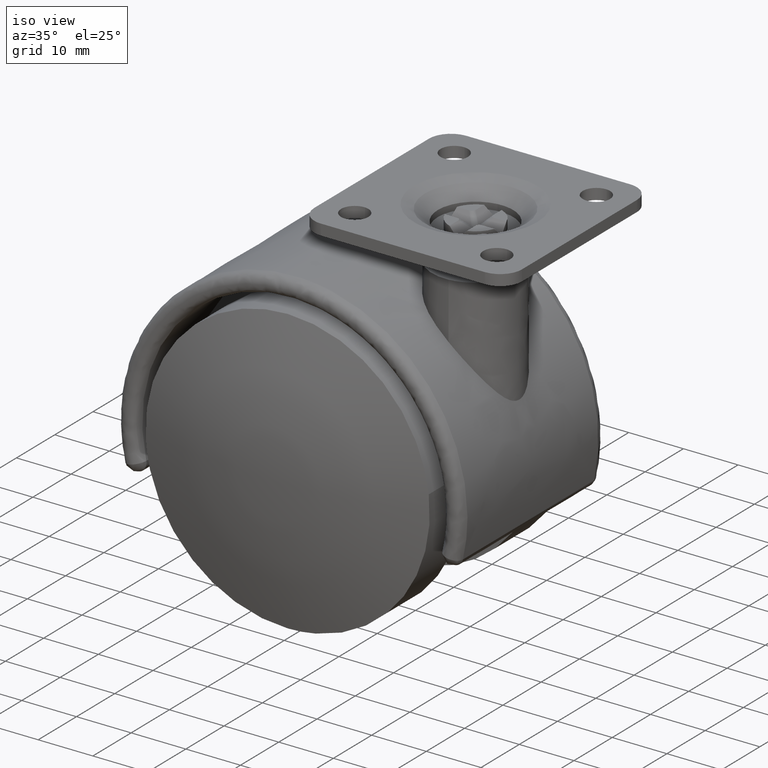
[diagram: clean part render]
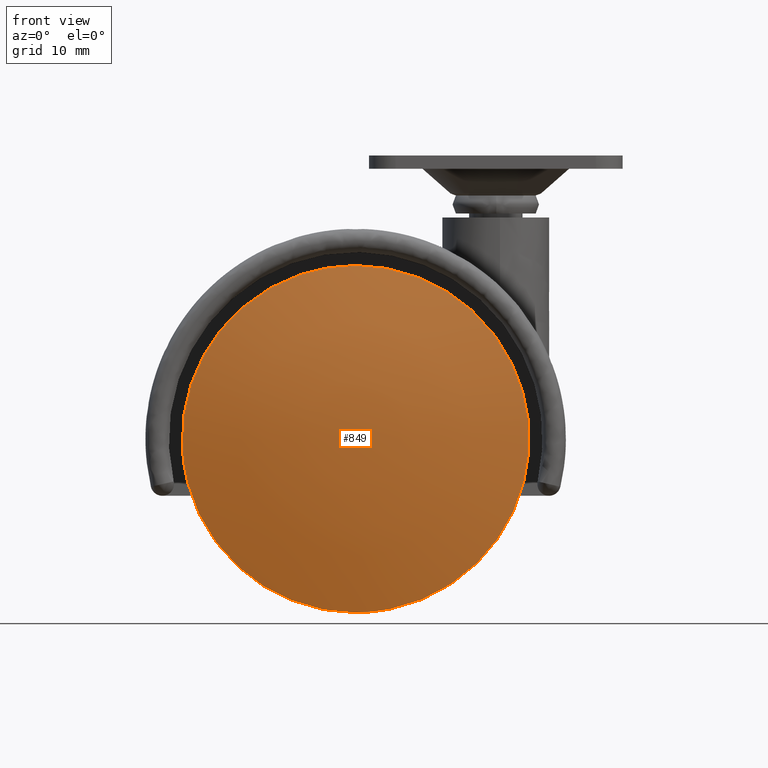
[diagram: tour spotlight — one face highlighted and labeled with its STEP entity id]
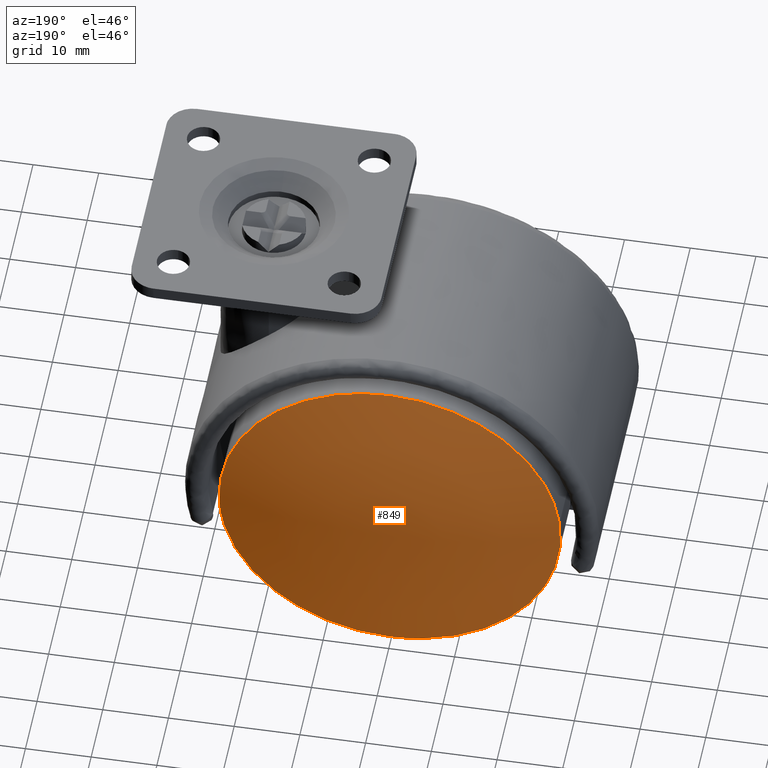
[diagram: tour spotlight — one face highlighted and labeled with its STEP entity id]
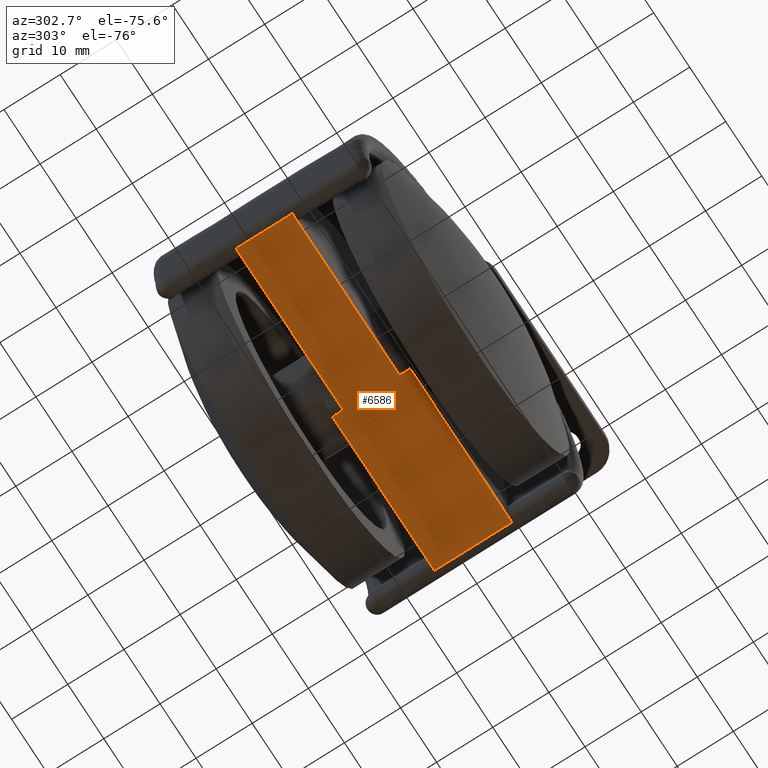
[diagram: tour spotlight — one face highlighted and labeled with its STEP entity id]
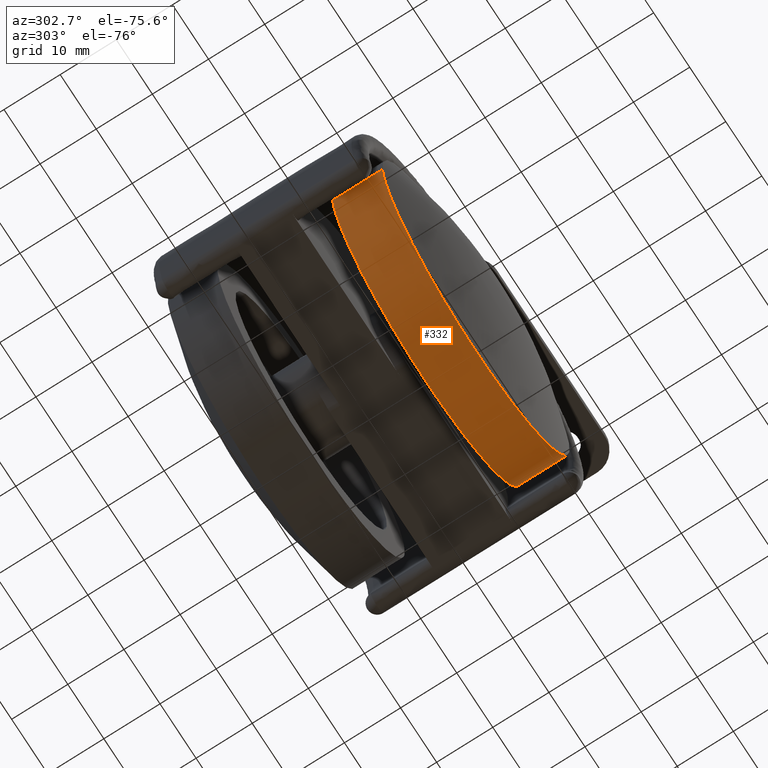
[diagram: tour spotlight — one face highlighted and labeled with its STEP entity id]
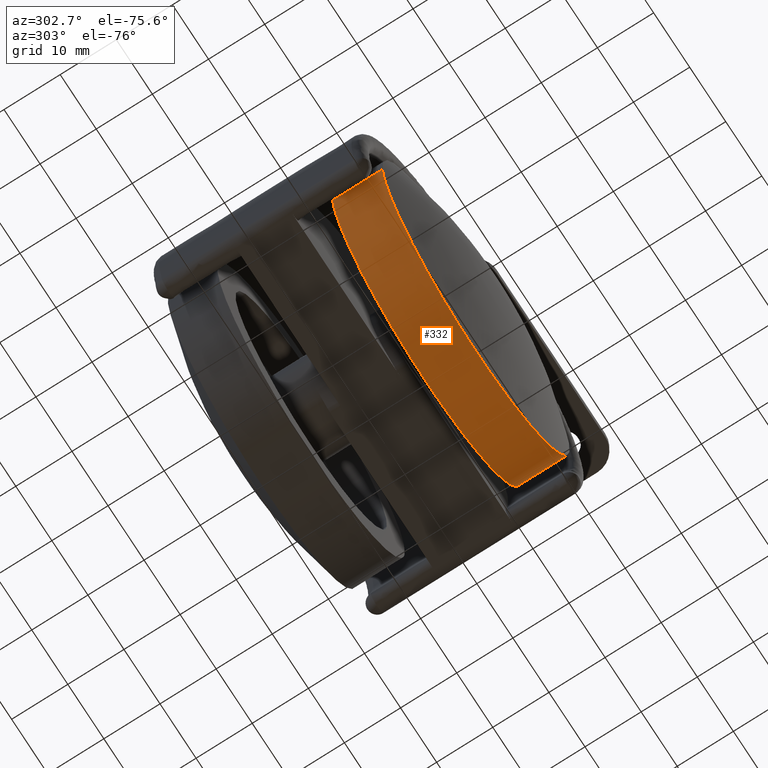
[diagram: tour spotlight — one face highlighted and labeled with its STEP entity id]
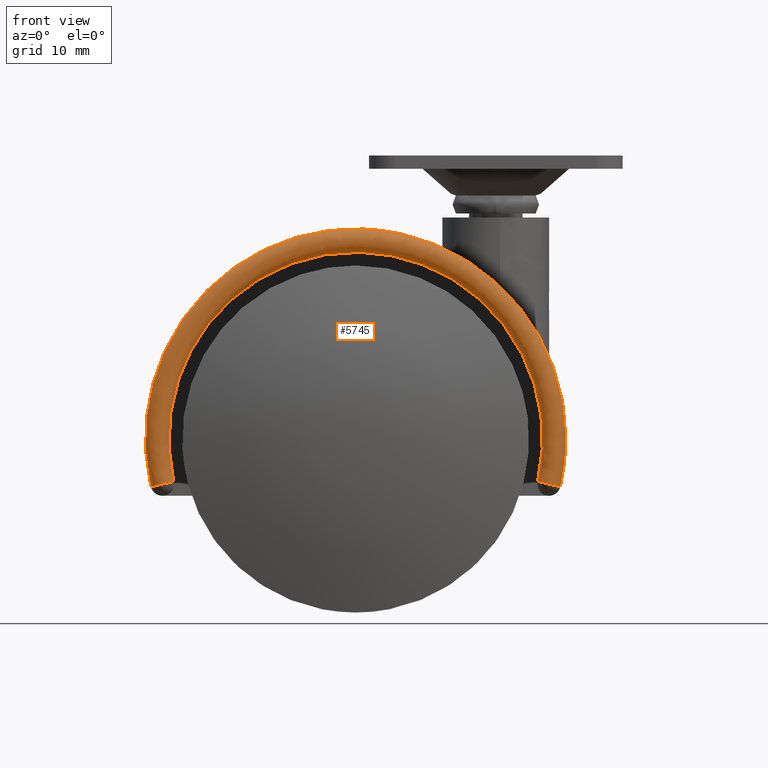
[diagram: tour spotlight — one face highlighted and labeled with its STEP entity id]
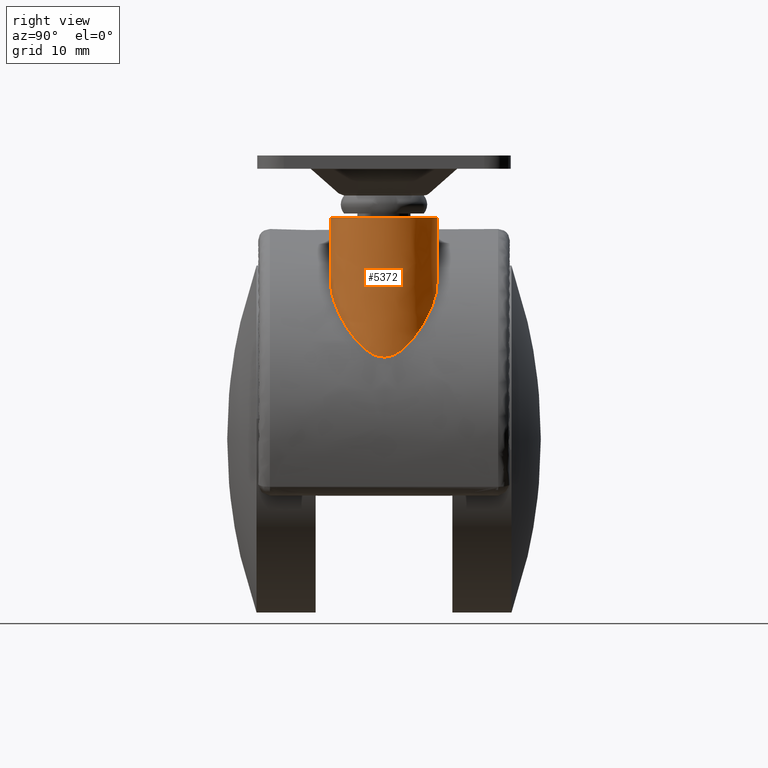
[diagram: tour spotlight — one face highlighted and labeled with its STEP entity id]
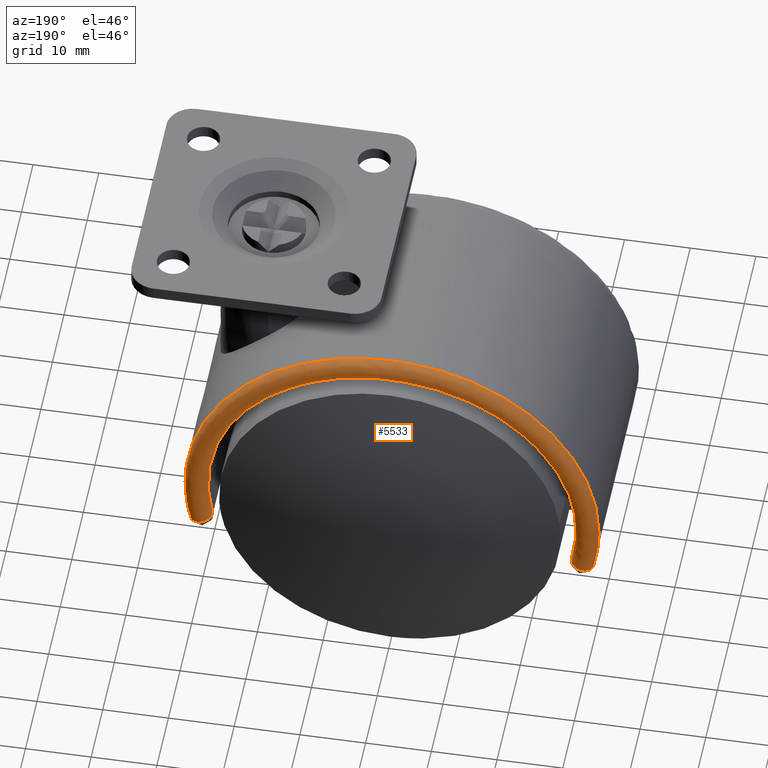
[diagram: tour spotlight — one face highlighted and labeled with its STEP entity id]
A machine part: a face-by-face anatomy tour. The part has 118 B-rep faces; the first image is the clean iso view, then the 8 largest visible faces are spotlighted one at a time (largest first), each with its STEP entity span.

Face 1 — front view, entity #849. In plain terms, the highlighted face is a freeform B-spline surface patch.
Definition (entity closure, byte-faithful):
#252=CARTESIAN_POINT('',(25.818250716227940,-19.100000010721399,3.068864603291616));
#253=VERTEX_POINT('',#252);
#254=CARTESIAN_POINT('',(0.0,-19.100000010721249,-26.0));
#255=VERTEX_POINT('',#254);
#256=CARTESIAN_POINT('',(25.818250716227940,-19.100000010721402,3.068864603291616));
#257=CARTESIAN_POINT('',(26.000000000000004,-19.100000010721246,1.539814227279839));
#258=CARTESIAN_POINT('',(26.0,-19.100000010721249,0.0));
#259=CARTESIAN_POINT('',(26.000000000000007,-19.100000010721242,-26.000000000000007));
#260=CARTESIAN_POINT('',(0.0,-19.100000010721249,-26.0));
#268=(BOUNDED_CURVE()B_SPLINE_CURVE(2,(#256,#257,#258,#259,#260),.UNSPECIFIED.,.F.,.U.)B_SPLINE_CURVE_WITH_KNOTS((3,2,3),(0.229562640421186,0.250000000000000,0.500000000000000),.UNSPECIFIED.)CURVE()GEOMETRIC_REPRESENTATION_ITEM()RATIONAL_B_SPLINE_CURVE((0.956027081329839,0.976056143875653,1.0,0.707106781186547,1.0))REPRESENTATION_ITEM(''));
#269=EDGE_CURVE('',#253,#255,#268,.T.);
#271=CARTESIAN_POINT('',(-25.951505815537288,-19.100000010721072,-1.587244752971166));
#272=VERTEX_POINT('',#271);
#273=CARTESIAN_POINT('',(0.0,-19.100000010721249,-26.0));
#274=CARTESIAN_POINT('',(-24.458374050980229,-19.100000010721249,-26.0));
#275=CARTESIAN_POINT('',(-25.951505815537292,-19.100000010721072,-1.587244752971166));
#283=(BOUNDED_CURVE()B_SPLINE_CURVE(2,(#273,#274,#275),.UNSPECIFIED.,.F.,.U.)B_SPLINE_CURVE_WITH_KNOTS((3,3),(0.500000000000000,0.739333077099850),.UNSPECIFIED.)CURVE()GEOMETRIC_REPRESENTATION_ITEM()RATIONAL_B_SPLINE_CURVE((1.0,0.719603858718787,0.976072287835629))REPRESENTATION_ITEM(''));
#284=EDGE_CURVE('',#255,#272,#283,.T.);
#351=CARTESIAN_POINT('',(0.0,-19.100000010721249,26.0));
#352=VERTEX_POINT('',#351);
#353=CARTESIAN_POINT('',(0.0,-19.100000010721249,26.0));
#354=CARTESIAN_POINT('',(23.092560641195718,-19.100000010721246,26.0));
#355=CARTESIAN_POINT('',(25.818250716227936,-19.100000010721409,3.068864603291616));
#363=(BOUNDED_CURVE()B_SPLINE_CURVE(2,(#353,#354,#355),.UNSPECIFIED.,.F.,.U.)B_SPLINE_CURVE_WITH_KNOTS((3,3),(0.0,0.229562640421186),.UNSPECIFIED.)CURVE()GEOMETRIC_REPRESENTATION_ITEM()RATIONAL_B_SPLINE_CURVE((1.0,0.731050637310895,0.956027081329839))REPRESENTATION_ITEM(''));
#364=EDGE_CURVE('',#352,#253,#363,.T.);
#398=CARTESIAN_POINT('',(-25.951505815537292,-19.100000010721072,-1.587244752971166));
#399=CARTESIAN_POINT('',(-25.999999999999996,-19.100000010721246,-0.794363184077576));
#400=CARTESIAN_POINT('',(-26.0,-19.100000010721249,0.0));
#401=CARTESIAN_POINT('',(-26.000000000000007,-19.100000010721242,26.000000000000007));
#402=CARTESIAN_POINT('',(0.0,-19.100000010721249,26.0));
#410=(BOUNDED_CURVE()B_SPLINE_CURVE(2,(#398,#399,#400,#401,#402),.UNSPECIFIED.,.F.,.U.)B_SPLINE_CURVE_WITH_KNOTS((3,2,3),(0.739333077099850,0.750000000000000,1.0),.UNSPECIFIED.)CURVE()GEOMETRIC_REPRESENTATION_ITEM()RATIONAL_B_SPLINE_CURVE((0.976072287835629,0.987502922467760,1.0,0.707106781186547,1.0))REPRESENTATION_ITEM(''));
#411=EDGE_CURVE('',#272,#352,#410,.T.);
#819=CARTESIAN_POINT('',(-27.509549926636083,-13.258914040041132,-27.510158300489543));
#820=CARTESIAN_POINT('',(-14.215357172331229,-18.207877278112218,-28.431343090072275));
#821=CARTESIAN_POINT('',(14.215437443623905,-18.207877278112218,-28.431343090072275));
#822=CARTESIAN_POINT('',(27.509695201312631,-13.258859959194144,-27.510148234047090));
#823=CARTESIAN_POINT('',(-28.430756452596867,-18.208103503328065,-14.215692599468955));
#824=CARTESIAN_POINT('',(-14.707876000288019,-23.499999999999972,-14.708201265049620));
#825=CARTESIAN_POINT('',(14.707959052736490,-23.499999999999972,-14.708201265049620));
#826=CARTESIAN_POINT('',(28.430906243680862,-18.208045739849442,-14.215687223510853));
#827=CARTESIAN_POINT('',(-28.430756452596867,-18.208103503328065,14.215694394626185));
#828=CARTESIAN_POINT('',(-14.707876000288019,-23.499999999999972,14.708203122400830));
#829=CARTESIAN_POINT('',(14.707959052736490,-23.499999999999972,14.708203122400830));
#830=CARTESIAN_POINT('',(28.430906243680862,-18.208045739849442,14.215689018667407));
#831=CARTESIAN_POINT('',(-27.509549701514796,-13.258912830575211,27.510161549345206));
#832=CARTESIAN_POINT('',(-14.215357052106134,-18.207875986291597,28.431346439925878));
#833=CARTESIAN_POINT('',(14.215437323398129,-18.207875986291597,28.431346439925878));
#834=CARTESIAN_POINT('',(27.509694976190243,-13.258858749729098,27.510151482901648));
#842=(BOUNDED_SURFACE()B_SPLINE_SURFACE(2,2,((#819,#823,#827,#831),(#820,#824,#828,#832),(#821,#825,#829,#833),(#822,#826,#830,#834)),.UNSPECIFIED.,.F.,.F.,.U.)B_SPLINE_SURFACE_WITH_KNOTS((3,1,3),(3,1,3),(14.714415427684781,42.997826829478001,71.281397942066192),(14.713789939880369,42.997826829477987,71.281867290782927),.UNSPECIFIED.)GEOMETRIC_REPRESENTATION_ITEM()RATIONAL_B_SPLINE_SURFACE(((1.069292375884866,1.034645421750261,1.034645421750261,1.069292384635299),(1.034646954134605,1.0,1.0,1.034646962885038),(1.034646954134605,1.0,1.0,1.034646962885038),(1.069292767157573,1.034645813022969,1.034645813022969,1.069292775908006)))REPRESENTATION_ITEM('')SURFACE());
#843=ORIENTED_EDGE('',*,*,#411,.F.);
#844=ORIENTED_EDGE('',*,*,#284,.F.);
#845=ORIENTED_EDGE('',*,*,#269,.F.);
#846=ORIENTED_EDGE('',*,*,#364,.F.);
#847=EDGE_LOOP('',(#843,#844,#845,#846));
#848=FACE_OUTER_BOUND('',#847,.T.);
#849=ADVANCED_FACE('',(#848),#842,.T.);

Face 2 — auxiliary view, entity #849. In plain terms, the highlighted face is a freeform B-spline surface patch.
Definition (entity closure, byte-faithful):
#252=CARTESIAN_POINT('',(25.818250716227940,-19.100000010721399,3.068864603291616));
#253=VERTEX_POINT('',#252);
#254=CARTESIAN_POINT('',(0.0,-19.100000010721249,-26.0));
#255=VERTEX_POINT('',#254);
#256=CARTESIAN_POINT('',(25.818250716227940,-19.100000010721402,3.068864603291616));
#257=CARTESIAN_POINT('',(26.000000000000004,-19.100000010721246,1.539814227279839));
#258=CARTESIAN_POINT('',(26.0,-19.100000010721249,0.0));
#259=CARTESIAN_POINT('',(26.000000000000007,-19.100000010721242,-26.000000000000007));
#260=CARTESIAN_POINT('',(0.0,-19.100000010721249,-26.0));
#268=(BOUNDED_CURVE()B_SPLINE_CURVE(2,(#256,#257,#258,#259,#260),.UNSPECIFIED.,.F.,.U.)B_SPLINE_CURVE_WITH_KNOTS((3,2,3),(0.229562640421186,0.250000000000000,0.500000000000000),.UNSPECIFIED.)CURVE()GEOMETRIC_REPRESENTATION_ITEM()RATIONAL_B_SPLINE_CURVE((0.956027081329839,0.976056143875653,1.0,0.707106781186547,1.0))REPRESENTATION_ITEM(''));
#269=EDGE_CURVE('',#253,#255,#268,.T.);
#271=CARTESIAN_POINT('',(-25.951505815537288,-19.100000010721072,-1.587244752971166));
#272=VERTEX_POINT('',#271);
#273=CARTESIAN_POINT('',(0.0,-19.100000010721249,-26.0));
#274=CARTESIAN_POINT('',(-24.458374050980229,-19.100000010721249,-26.0));
#275=CARTESIAN_POINT('',(-25.951505815537292,-19.100000010721072,-1.587244752971166));
#283=(BOUNDED_CURVE()B_SPLINE_CURVE(2,(#273,#274,#275),.UNSPECIFIED.,.F.,.U.)B_SPLINE_CURVE_WITH_KNOTS((3,3),(0.500000000000000,0.739333077099850),.UNSPECIFIED.)CURVE()GEOMETRIC_REPRESENTATION_ITEM()RATIONAL_B_SPLINE_CURVE((1.0,0.719603858718787,0.976072287835629))REPRESENTATION_ITEM(''));
#284=EDGE_CURVE('',#255,#272,#283,.T.);
#351=CARTESIAN_POINT('',(0.0,-19.100000010721249,26.0));
#352=VERTEX_POINT('',#351);
#353=CARTESIAN_POINT('',(0.0,-19.100000010721249,26.0));
#354=CARTESIAN_POINT('',(23.092560641195718,-19.100000010721246,26.0));
#355=CARTESIAN_POINT('',(25.818250716227936,-19.100000010721409,3.068864603291616));
#363=(BOUNDED_CURVE()B_SPLINE_CURVE(2,(#353,#354,#355),.UNSPECIFIED.,.F.,.U.)B_SPLINE_CURVE_WITH_KNOTS((3,3),(0.0,0.229562640421186),.UNSPECIFIED.)CURVE()GEOMETRIC_REPRESENTATION_ITEM()RATIONAL_B_SPLINE_CURVE((1.0,0.731050637310895,0.956027081329839))REPRESENTATION_ITEM(''));
#364=EDGE_CURVE('',#352,#253,#363,.T.);
#398=CARTESIAN_POINT('',(-25.951505815537292,-19.100000010721072,-1.587244752971166));
#399=CARTESIAN_POINT('',(-25.999999999999996,-19.100000010721246,-0.794363184077576));
#400=CARTESIAN_POINT('',(-26.0,-19.100000010721249,0.0));
#401=CARTESIAN_POINT('',(-26.000000000000007,-19.100000010721242,26.000000000000007));
#402=CARTESIAN_POINT('',(0.0,-19.100000010721249,26.0));
#410=(BOUNDED_CURVE()B_SPLINE_CURVE(2,(#398,#399,#400,#401,#402),.UNSPECIFIED.,.F.,.U.)B_SPLINE_CURVE_WITH_KNOTS((3,2,3),(0.739333077099850,0.750000000000000,1.0),.UNSPECIFIED.)CURVE()GEOMETRIC_REPRESENTATION_ITEM()RATIONAL_B_SPLINE_CURVE((0.976072287835629,0.987502922467760,1.0,0.707106781186547,1.0))REPRESENTATION_ITEM(''));
#411=EDGE_CURVE('',#272,#352,#410,.T.);
#819=CARTESIAN_POINT('',(-27.509549926636083,-13.258914040041132,-27.510158300489543));
#820=CARTESIAN_POINT('',(-14.215357172331229,-18.207877278112218,-28.431343090072275));
#821=CARTESIAN_POINT('',(14.215437443623905,-18.207877278112218,-28.431343090072275));
#822=CARTESIAN_POINT('',(27.509695201312631,-13.258859959194144,-27.510148234047090));
#823=CARTESIAN_POINT('',(-28.430756452596867,-18.208103503328065,-14.215692599468955));
#824=CARTESIAN_POINT('',(-14.707876000288019,-23.499999999999972,-14.708201265049620));
#825=CARTESIAN_POINT('',(14.707959052736490,-23.499999999999972,-14.708201265049620));
#826=CARTESIAN_POINT('',(28.430906243680862,-18.208045739849442,-14.215687223510853));
#827=CARTESIAN_POINT('',(-28.430756452596867,-18.208103503328065,14.215694394626185));
#828=CARTESIAN_POINT('',(-14.707876000288019,-23.499999999999972,14.708203122400830));
#829=CARTESIAN_POINT('',(14.707959052736490,-23.499999999999972,14.708203122400830));
#830=CARTESIAN_POINT('',(28.430906243680862,-18.208045739849442,14.215689018667407));
#831=CARTESIAN_POINT('',(-27.509549701514796,-13.258912830575211,27.510161549345206));
#832=CARTESIAN_POINT('',(-14.215357052106134,-18.207875986291597,28.431346439925878));
#833=CARTESIAN_POINT('',(14.215437323398129,-18.207875986291597,28.431346439925878));
#834=CARTESIAN_POINT('',(27.509694976190243,-13.258858749729098,27.510151482901648));
#842=(BOUNDED_SURFACE()B_SPLINE_SURFACE(2,2,((#819,#823,#827,#831),(#820,#824,#828,#832),(#821,#825,#829,#833),(#822,#826,#830,#834)),.UNSPECIFIED.,.F.,.F.,.U.)B_SPLINE_SURFACE_WITH_KNOTS((3,1,3),(3,1,3),(14.714415427684781,42.997826829478001,71.281397942066192),(14.713789939880369,42.997826829477987,71.281867290782927),.UNSPECIFIED.)GEOMETRIC_REPRESENTATION_ITEM()RATIONAL_B_SPLINE_SURFACE(((1.069292375884866,1.034645421750261,1.034645421750261,1.069292384635299),(1.034646954134605,1.0,1.0,1.034646962885038),(1.034646954134605,1.0,1.0,1.034646962885038),(1.069292767157573,1.034645813022969,1.034645813022969,1.069292775908006)))REPRESENTATION_ITEM('')SURFACE());
#843=ORIENTED_EDGE('',*,*,#411,.F.);
#844=ORIENTED_EDGE('',*,*,#284,.F.);
#845=ORIENTED_EDGE('',*,*,#269,.F.);
#846=ORIENTED_EDGE('',*,*,#364,.F.);
#847=EDGE_LOOP('',(#843,#844,#845,#846));
#848=FACE_OUTER_BOUND('',#847,.T.);
#849=ADVANCED_FACE('',(#848),#842,.T.);

Face 3 — auxiliary view, entity #6586. In plain terms, the highlighted face is a freeform B-spline surface patch.
Definition (entity closure, byte-faithful):
#5828=CARTESIAN_POINT('',(28.974126388900849,-6.900000000000000,-8.500000000000000));
#5829=VERTEX_POINT('',#5828);
#5845=CARTESIAN_POINT('',(28.974126388900849,6.900000000000000,-8.500000000000000));
#5846=VERTEX_POINT('',#5845);
#5847=CARTESIAN_POINT('',(28.974126388900849,6.900000000000000,-8.500000000000000));
#5848=CARTESIAN_POINT('',(28.974126388900849,-6.900000000000000,-8.500000000000000));
#5849=QUASI_UNIFORM_CURVE('',1,(#5847,#5848),.UNSPECIFIED.,.F.,.U.);
#5850=EDGE_CURVE('',#5846,#5829,#5849,.T.);
#5917=CARTESIAN_POINT('',(-28.974126388900849,5.0,-8.500000000000000));
#5918=VERTEX_POINT('',#5917);
#5934=CARTESIAN_POINT('',(-28.974126388900849,-5.0,-8.500000000000000));
#5935=VERTEX_POINT('',#5934);
#5936=CARTESIAN_POINT('',(-28.974126388900849,-5.0,-8.500000000000000));
#5937=CARTESIAN_POINT('',(-28.974126388900849,5.0,-8.500000000000000));
#5938=QUASI_UNIFORM_CURVE('',1,(#5936,#5937),.UNSPECIFIED.,.F.,.U.);
#5939=EDGE_CURVE('',#5935,#5918,#5938,.T.);
#6018=CARTESIAN_POINT('',(0.750000000000000,6.900000000000000,-8.500000000000000));
#6019=VERTEX_POINT('',#6018);
#6020=CARTESIAN_POINT('',(28.974126388900849,6.900000000000000,-8.500000000000000));
#6021=CARTESIAN_POINT('',(0.750000000000000,6.900000000000000,-8.500000000000000));
#6022=QUASI_UNIFORM_CURVE('',1,(#6020,#6021),.UNSPECIFIED.,.F.,.U.);
#6023=EDGE_CURVE('',#5846,#6019,#6022,.T.);
#6097=CARTESIAN_POINT('',(0.750000000000000,5.0,-8.500000000000000));
#6098=VERTEX_POINT('',#6097);
#6099=CARTESIAN_POINT('',(0.750000000000000,5.0,-8.500000000000000));
#6100=CARTESIAN_POINT('',(0.750000000000000,6.900000000000000,-8.500000000000000));
#6101=QUASI_UNIFORM_CURVE('',1,(#6099,#6100),.UNSPECIFIED.,.F.,.U.);
#6102=EDGE_CURVE('',#6098,#6019,#6101,.T.);
#6194=CARTESIAN_POINT('',(0.750000000000000,5.0,-8.500000000000000));
#6195=CARTESIAN_POINT('',(-28.974126388900849,5.0,-8.500000000000000));
#6196=QUASI_UNIFORM_CURVE('',1,(#6194,#6195),.UNSPECIFIED.,.F.,.U.);
#6197=EDGE_CURVE('',#6098,#5918,#6196,.T.);
#6264=CARTESIAN_POINT('',(0.750000000000000,-6.900000000000000,-8.500000000000000));
#6265=VERTEX_POINT('',#6264);
#6279=CARTESIAN_POINT('',(28.974126388900849,-6.900000000000000,-8.500000000000000));
#6280=CARTESIAN_POINT('',(0.750000000000000,-6.900000000000000,-8.500000000000000));
#6281=QUASI_UNIFORM_CURVE('',1,(#6279,#6280),.UNSPECIFIED.,.F.,.U.);
#6282=EDGE_CURVE('',#5829,#6265,#6281,.T.);
#6366=CARTESIAN_POINT('',(0.750000000000000,-5.0,-8.500000000000000));
#6367=VERTEX_POINT('',#6366);
#6381=CARTESIAN_POINT('',(0.750000000000000,-5.0,-8.500000000000000));
#6382=CARTESIAN_POINT('',(0.750000000000000,-6.900000000000000,-8.500000000000000));
#6383=QUASI_UNIFORM_CURVE('',1,(#6381,#6382),.UNSPECIFIED.,.F.,.U.);
#6384=EDGE_CURVE('',#6367,#6265,#6383,.T.);
#6475=CARTESIAN_POINT('',(-28.974126388900849,-5.0,-8.500000000000000));
#6476=CARTESIAN_POINT('',(0.750000000000000,-5.0,-8.500000000000000));
#6477=QUASI_UNIFORM_CURVE('',1,(#6475,#6476),.UNSPECIFIED.,.F.,.U.);
#6478=EDGE_CURVE('',#5935,#6367,#6477,.T.);
#6571=CARTESIAN_POINT('',(-31.868642046813822,-7.589310102797450,-8.500000000000000));
#6572=CARTESIAN_POINT('',(31.868643083009339,-7.589310102797450,-8.500000000000000));
#6573=CARTESIAN_POINT('',(-31.868642046813822,7.589310349560680,-8.500000000000000));
#6574=CARTESIAN_POINT('',(31.868643083009339,7.589310349560680,-8.500000000000000));
#6575=B_SPLINE_SURFACE_WITH_KNOTS('',1,1,((#6571,#6573),(#6572,#6574)),.UNSPECIFIED.,.F.,.F.,.U.,(2,2),(2,2),(0.0,63.737285129823171),(0.0,15.178620452358130),.UNSPECIFIED.);
#6576=ORIENTED_EDGE('',*,*,#6478,.F.);
#6577=ORIENTED_EDGE('',*,*,#5939,.T.);
#6578=ORIENTED_EDGE('',*,*,#6197,.F.);
#6579=ORIENTED_EDGE('',*,*,#6102,.T.);
#6580=ORIENTED_EDGE('',*,*,#6023,.F.);
#6581=ORIENTED_EDGE('',*,*,#5850,.T.);
#6582=ORIENTED_EDGE('',*,*,#6282,.T.);
#6583=ORIENTED_EDGE('',*,*,#6384,.F.);
#6584=EDGE_LOOP('',(#6576,#6577,#6578,#6579,#6580,#6581,#6582,#6583));
#6585=FACE_OUTER_BOUND('',#6584,.T.);
#6586=ADVANCED_FACE('',(#6585),#6575,.F.);

Face 4 — auxiliary view, entity #332. In plain terms, the highlighted face is a freeform B-spline surface patch.
Definition (entity closure, byte-faithful):
#230=CARTESIAN_POINT('',(25.818247685455319,-19.321250010989285,3.068890101075720));
#231=CARTESIAN_POINT('',(25.906078001663747,-19.321250010989285,2.329982944587419));
#232=CARTESIAN_POINT('',(25.951504758968529,-19.321250010989289,1.587262027906282));
#233=CARTESIAN_POINT('',(27.538766786874810,-19.321250010989285,-24.364242731062255));
#234=CARTESIAN_POINT('',(1.587262027906282,-19.321250010989289,-25.951504758968529));
#235=CARTESIAN_POINT('',(-24.364242731062255,-19.321250010989285,-27.538766786874810));
#236=CARTESIAN_POINT('',(-25.951504758968529,-19.321250010989289,-1.587262027906282));
#237=CARTESIAN_POINT('',(25.818247685455319,-10.023218749725268,3.068890101075720));
#238=CARTESIAN_POINT('',(25.906078001663747,-10.023218749725267,2.329982944587419));
#239=CARTESIAN_POINT('',(25.951504758968529,-10.023218749725270,1.587262027906282));
#240=CARTESIAN_POINT('',(27.538766786874810,-10.023218749725267,-24.364242731062255));
#241=CARTESIAN_POINT('',(1.587262027906282,-10.023218749725270,-25.951504758968529));
#242=CARTESIAN_POINT('',(-24.364242731062255,-10.023218749725267,-27.538766786874810));
#243=CARTESIAN_POINT('',(-25.951504758968529,-10.023218749725270,-1.587262027906282));
#251=(BOUNDED_SURFACE()B_SPLINE_SURFACE(2,1,((#230,#237),(#231,#238),(#232,#239),(#233,#240),(#234,#241),(#235,#242),(#236,#243)),.UNSPECIFIED.,.F.,.F.,.U.)B_SPLINE_SURFACE_WITH_KNOTS((3,2,2,3),(2,2),(0.0,1.723128419472078,44.801338906273962,87.879549393075834),(0.0,9.298031261264020),.UNSPECIFIED.)GEOMETRIC_REPRESENTATION_ITEM()RATIONAL_B_SPLINE_SURFACE(((0.977505800795127,0.977505800795127),(0.988284271247462,0.988284271247462),(1.0,1.0),(0.707106781186548,0.707106781186548),(1.0,1.0),(0.707106781186548,0.707106781186548),(1.0,1.0)))REPRESENTATION_ITEM('')SURFACE());
#252=CARTESIAN_POINT('',(25.818250716227940,-19.100000010721399,3.068864603291616));
#253=VERTEX_POINT('',#252);
#254=CARTESIAN_POINT('',(0.0,-19.100000010721249,-26.0));
#255=VERTEX_POINT('',#254);
#256=CARTESIAN_POINT('',(25.818250716227940,-19.100000010721402,3.068864603291616));
#257=CARTESIAN_POINT('',(26.000000000000004,-19.100000010721246,1.539814227279839));
#258=CARTESIAN_POINT('',(26.0,-19.100000010721249,0.0));
#259=CARTESIAN_POINT('',(26.000000000000007,-19.100000010721242,-26.000000000000007));
#260=CARTESIAN_POINT('',(0.0,-19.100000010721249,-26.0));
#268=(BOUNDED_CURVE()B_SPLINE_CURVE(2,(#256,#257,#258,#259,#260),.UNSPECIFIED.,.F.,.U.)B_SPLINE_CURVE_WITH_KNOTS((3,2,3),(0.229562640421186,0.250000000000000,0.500000000000000),.UNSPECIFIED.)CURVE()GEOMETRIC_REPRESENTATION_ITEM()RATIONAL_B_SPLINE_CURVE((0.956027081329839,0.976056143875653,1.0,0.707106781186547,1.0))REPRESENTATION_ITEM(''));
#269=EDGE_CURVE('',#253,#255,#268,.T.);
#270=ORIENTED_EDGE('',*,*,#269,.T.);
#271=CARTESIAN_POINT('',(-25.951505815537288,-19.100000010721072,-1.587244752971166));
#272=VERTEX_POINT('',#271);
#273=CARTESIAN_POINT('',(0.0,-19.100000010721249,-26.0));
#274=CARTESIAN_POINT('',(-24.458374050980229,-19.100000010721249,-26.0));
#275=CARTESIAN_POINT('',(-25.951505815537292,-19.100000010721072,-1.587244752971166));
#283=(BOUNDED_CURVE()B_SPLINE_CURVE(2,(#273,#274,#275),.UNSPECIFIED.,.F.,.U.)B_SPLINE_CURVE_WITH_KNOTS((3,3),(0.500000000000000,0.739333077099850),.UNSPECIFIED.)CURVE()GEOMETRIC_REPRESENTATION_ITEM()RATIONAL_B_SPLINE_CURVE((1.0,0.719603858718787,0.976072287835629))REPRESENTATION_ITEM(''));
#284=EDGE_CURVE('',#255,#272,#283,.T.);
#285=ORIENTED_EDGE('',*,*,#284,.T.);
#286=CARTESIAN_POINT('',(-25.951505802817628,-10.250000000000000,-1.587244960940237));
#287=VERTEX_POINT('',#286);
#288=CARTESIAN_POINT('',(-25.951505815537288,-19.100000010721072,-1.587244752971166));
#289=CARTESIAN_POINT('',(-25.951505802817628,-10.250000000000000,-1.587244960940237));
#290=QUASI_UNIFORM_CURVE('',1,(#288,#289),.UNSPECIFIED.,.F.,.U.);
#291=EDGE_CURVE('',#272,#287,#290,.T.);
#292=ORIENTED_EDGE('',*,*,#291,.T.);
#293=CARTESIAN_POINT('',(0.0,-10.250000000000000,-26.0));
#294=VERTEX_POINT('',#293);
#295=CARTESIAN_POINT('',(0.0,-10.250000000000000,-26.0));
#296=CARTESIAN_POINT('',(-24.458373854610496,-10.249999999999998,-26.000000000000007));
#297=CARTESIAN_POINT('',(-25.951505802817632,-10.249999999999998,-1.587244960940237));
#305=(BOUNDED_CURVE()B_SPLINE_CURVE(2,(#295,#296,#297),.UNSPECIFIED.,.F.,.U.)B_SPLINE_CURVE_WITH_KNOTS((3,3),(0.500000000000000,0.739333075717101),.UNSPECIFIED.)CURVE()GEOMETRIC_REPRESENTATION_ITEM()RATIONAL_B_SPLINE_CURVE((1.0,0.719603860338778,0.976072284872133))REPRESENTATION_ITEM(''));
#306=EDGE_CURVE('',#294,#287,#305,.T.);
#307=ORIENTED_EDGE('',*,*,#306,.F.);
#308=CARTESIAN_POINT('',(25.818250679703731,-10.250000000000000,3.068864910571040));
#309=VERTEX_POINT('',#308);
#310=CARTESIAN_POINT('',(25.818250679703727,-10.250000000000000,3.068864910571040));
#311=CARTESIAN_POINT('',(26.000000000000004,-10.249999999999998,1.539814382543767));
#312=CARTESIAN_POINT('',(26.0,-10.250000000000000,0.0));
#313=CARTESIAN_POINT('',(26.000000000000007,-10.250000000000000,-26.000000000000007));
#314=CARTESIAN_POINT('',(0.0,-10.250000000000000,-26.0));
#322=(BOUNDED_CURVE()B_SPLINE_CURVE(2,(#310,#311,#312,#313,#314),.UNSPECIFIED.,.F.,.U.)B_SPLINE_CURVE_WITH_KNOTS((3,2,3),(0.229562638409770,0.250000000000000,0.500000000000000),.UNSPECIFIED.)CURVE()GEOMETRIC_REPRESENTATION_ITEM()RATIONAL_B_SPLINE_CURVE((0.956027077387376,0.976056141519133,1.0,0.707106781186547,1.0))REPRESENTATION_ITEM(''));
#323=EDGE_CURVE('',#309,#294,#322,.T.);
#324=ORIENTED_EDGE('',*,*,#323,.F.);
#325=CARTESIAN_POINT('',(25.818250716227940,-19.100000010721399,3.068864603291616));
#326=CARTESIAN_POINT('',(25.818250679703731,-10.250000000000000,3.068864910571040));
#327=QUASI_UNIFORM_CURVE('',1,(#325,#326),.UNSPECIFIED.,.F.,.U.);
#328=EDGE_CURVE('',#253,#309,#327,.T.);
#329=ORIENTED_EDGE('',*,*,#328,.F.);
#330=EDGE_LOOP('',(#270,#285,#292,#307,#324,#329));
#331=FACE_OUTER_BOUND('',#330,.T.);
#332=ADVANCED_FACE('',(#331),#251,.T.);

Face 5 — auxiliary view, entity #332. In plain terms, the highlighted face is a freeform B-spline surface patch.
Definition (entity closure, byte-faithful):
#230=CARTESIAN_POINT('',(25.818247685455319,-19.321250010989285,3.068890101075720));
#231=CARTESIAN_POINT('',(25.906078001663747,-19.321250010989285,2.329982944587419));
#232=CARTESIAN_POINT('',(25.951504758968529,-19.321250010989289,1.587262027906282));
#233=CARTESIAN_POINT('',(27.538766786874810,-19.321250010989285,-24.364242731062255));
#234=CARTESIAN_POINT('',(1.587262027906282,-19.321250010989289,-25.951504758968529));
#235=CARTESIAN_POINT('',(-24.364242731062255,-19.321250010989285,-27.538766786874810));
#236=CARTESIAN_POINT('',(-25.951504758968529,-19.321250010989289,-1.587262027906282));
#237=CARTESIAN_POINT('',(25.818247685455319,-10.023218749725268,3.068890101075720));
#238=CARTESIAN_POINT('',(25.906078001663747,-10.023218749725267,2.329982944587419));
#239=CARTESIAN_POINT('',(25.951504758968529,-10.023218749725270,1.587262027906282));
#240=CARTESIAN_POINT('',(27.538766786874810,-10.023218749725267,-24.364242731062255));
#241=CARTESIAN_POINT('',(1.587262027906282,-10.023218749725270,-25.951504758968529));
#242=CARTESIAN_POINT('',(-24.364242731062255,-10.023218749725267,-27.538766786874810));
#243=CARTESIAN_POINT('',(-25.951504758968529,-10.023218749725270,-1.587262027906282));
#251=(BOUNDED_SURFACE()B_SPLINE_SURFACE(2,1,((#230,#237),(#231,#238),(#232,#239),(#233,#240),(#234,#241),(#235,#242),(#236,#243)),.UNSPECIFIED.,.F.,.F.,.U.)B_SPLINE_SURFACE_WITH_KNOTS((3,2,2,3),(2,2),(0.0,1.723128419472078,44.801338906273962,87.879549393075834),(0.0,9.298031261264020),.UNSPECIFIED.)GEOMETRIC_REPRESENTATION_ITEM()RATIONAL_B_SPLINE_SURFACE(((0.977505800795127,0.977505800795127),(0.988284271247462,0.988284271247462),(1.0,1.0),(0.707106781186548,0.707106781186548),(1.0,1.0),(0.707106781186548,0.707106781186548),(1.0,1.0)))REPRESENTATION_ITEM('')SURFACE());
#252=CARTESIAN_POINT('',(25.818250716227940,-19.100000010721399,3.068864603291616));
#253=VERTEX_POINT('',#252);
#254=CARTESIAN_POINT('',(0.0,-19.100000010721249,-26.0));
#255=VERTEX_POINT('',#254);
#256=CARTESIAN_POINT('',(25.818250716227940,-19.100000010721402,3.068864603291616));
#257=CARTESIAN_POINT('',(26.000000000000004,-19.100000010721246,1.539814227279839));
#258=CARTESIAN_POINT('',(26.0,-19.100000010721249,0.0));
#259=CARTESIAN_POINT('',(26.000000000000007,-19.100000010721242,-26.000000000000007));
#260=CARTESIAN_POINT('',(0.0,-19.100000010721249,-26.0));
#268=(BOUNDED_CURVE()B_SPLINE_CURVE(2,(#256,#257,#258,#259,#260),.UNSPECIFIED.,.F.,.U.)B_SPLINE_CURVE_WITH_KNOTS((3,2,3),(0.229562640421186,0.250000000000000,0.500000000000000),.UNSPECIFIED.)CURVE()GEOMETRIC_REPRESENTATION_ITEM()RATIONAL_B_SPLINE_CURVE((0.956027081329839,0.976056143875653,1.0,0.707106781186547,1.0))REPRESENTATION_ITEM(''));
#269=EDGE_CURVE('',#253,#255,#268,.T.);
#270=ORIENTED_EDGE('',*,*,#269,.T.);
#271=CARTESIAN_POINT('',(-25.951505815537288,-19.100000010721072,-1.587244752971166));
#272=VERTEX_POINT('',#271);
#273=CARTESIAN_POINT('',(0.0,-19.100000010721249,-26.0));
#274=CARTESIAN_POINT('',(-24.458374050980229,-19.100000010721249,-26.0));
#275=CARTESIAN_POINT('',(-25.951505815537292,-19.100000010721072,-1.587244752971166));
#283=(BOUNDED_CURVE()B_SPLINE_CURVE(2,(#273,#274,#275),.UNSPECIFIED.,.F.,.U.)B_SPLINE_CURVE_WITH_KNOTS((3,3),(0.500000000000000,0.739333077099850),.UNSPECIFIED.)CURVE()GEOMETRIC_REPRESENTATION_ITEM()RATIONAL_B_SPLINE_CURVE((1.0,0.719603858718787,0.976072287835629))REPRESENTATION_ITEM(''));
#284=EDGE_CURVE('',#255,#272,#283,.T.);
#285=ORIENTED_EDGE('',*,*,#284,.T.);
#286=CARTESIAN_POINT('',(-25.951505802817628,-10.250000000000000,-1.587244960940237));
#287=VERTEX_POINT('',#286);
#288=CARTESIAN_POINT('',(-25.951505815537288,-19.100000010721072,-1.587244752971166));
#289=CARTESIAN_POINT('',(-25.951505802817628,-10.250000000000000,-1.587244960940237));
#290=QUASI_UNIFORM_CURVE('',1,(#288,#289),.UNSPECIFIED.,.F.,.U.);
#291=EDGE_CURVE('',#272,#287,#290,.T.);
#292=ORIENTED_EDGE('',*,*,#291,.T.);
#293=CARTESIAN_POINT('',(0.0,-10.250000000000000,-26.0));
#294=VERTEX_POINT('',#293);
#295=CARTESIAN_POINT('',(0.0,-10.250000000000000,-26.0));
#296=CARTESIAN_POINT('',(-24.458373854610496,-10.249999999999998,-26.000000000000007));
#297=CARTESIAN_POINT('',(-25.951505802817632,-10.249999999999998,-1.587244960940237));
#305=(BOUNDED_CURVE()B_SPLINE_CURVE(2,(#295,#296,#297),.UNSPECIFIED.,.F.,.U.)B_SPLINE_CURVE_WITH_KNOTS((3,3),(0.500000000000000,0.739333075717101),.UNSPECIFIED.)CURVE()GEOMETRIC_REPRESENTATION_ITEM()RATIONAL_B_SPLINE_CURVE((1.0,0.719603860338778,0.976072284872133))REPRESENTATION_ITEM(''));
#306=EDGE_CURVE('',#294,#287,#305,.T.);
#307=ORIENTED_EDGE('',*,*,#306,.F.);
#308=CARTESIAN_POINT('',(25.818250679703731,-10.250000000000000,3.068864910571040));
#309=VERTEX_POINT('',#308);
#310=CARTESIAN_POINT('',(25.818250679703727,-10.250000000000000,3.068864910571040));
#311=CARTESIAN_POINT('',(26.000000000000004,-10.249999999999998,1.539814382543767));
#312=CARTESIAN_POINT('',(26.0,-10.250000000000000,0.0));
#313=CARTESIAN_POINT('',(26.000000000000007,-10.250000000000000,-26.000000000000007));
#314=CARTESIAN_POINT('',(0.0,-10.250000000000000,-26.0));
#322=(BOUNDED_CURVE()B_SPLINE_CURVE(2,(#310,#311,#312,#313,#314),.UNSPECIFIED.,.F.,.U.)B_SPLINE_CURVE_WITH_KNOTS((3,2,3),(0.229562638409770,0.250000000000000,0.500000000000000),.UNSPECIFIED.)CURVE()GEOMETRIC_REPRESENTATION_ITEM()RATIONAL_B_SPLINE_CURVE((0.956027077387376,0.976056141519133,1.0,0.707106781186547,1.0))REPRESENTATION_ITEM(''));
#323=EDGE_CURVE('',#309,#294,#322,.T.);
#324=ORIENTED_EDGE('',*,*,#323,.F.);
#325=CARTESIAN_POINT('',(25.818250716227940,-19.100000010721399,3.068864603291616));
#326=CARTESIAN_POINT('',(25.818250679703731,-10.250000000000000,3.068864910571040));
#327=QUASI_UNIFORM_CURVE('',1,(#325,#326),.UNSPECIFIED.,.F.,.U.);
#328=EDGE_CURVE('',#253,#309,#327,.T.);
#329=ORIENTED_EDGE('',*,*,#328,.F.);
#330=EDGE_LOOP('',(#270,#285,#292,#307,#324,#329));
#331=FACE_OUTER_BOUND('',#330,.T.);
#332=ADVANCED_FACE('',(#331),#251,.T.);

Face 6 — front view, entity #5745. In plain terms, the highlighted face is a freeform B-spline surface patch.
Definition (entity closure, byte-faithful):
#5617=CARTESIAN_POINT('',(-27.269766013083149,-17.100000000000001,-6.352941176470590));
#5618=VERTEX_POINT('',#5617);
#5619=CARTESIAN_POINT('',(-30.678486764718549,-17.100000000000001,-7.147058823529410));
#5620=VERTEX_POINT('',#5619);
#5621=CARTESIAN_POINT('',(-27.269766013083149,-17.100000000000001,-6.352941176470587));
#5622=CARTESIAN_POINT('',(-27.269766013083157,-18.850000000000001,-6.352941176470586));
#5623=CARTESIAN_POINT('',(-28.974126388900849,-18.850000000000001,-6.750000000000000));
#5624=CARTESIAN_POINT('',(-30.678486764718549,-18.850000000000001,-7.147058823529414));
#5625=CARTESIAN_POINT('',(-30.678486764718539,-17.100000000000001,-7.147058823529413));
#5633=(BOUNDED_CURVE()B_SPLINE_CURVE(2,(#5621,#5622,#5623,#5624,#5625),.UNSPECIFIED.,.F.,.U.)B_SPLINE_CURVE_WITH_KNOTS((3,2,3),(0.0,0.500000000000000,1.0),.UNSPECIFIED.)CURVE()GEOMETRIC_REPRESENTATION_ITEM()RATIONAL_B_SPLINE_CURVE((1.0,0.707106781186547,1.0,0.707106781186547,1.0))REPRESENTATION_ITEM(''));
#5634=EDGE_CURVE('',#5618,#5620,#5633,.T.);
#5656=CARTESIAN_POINT('',(29.430086460112978,-16.852832165797366,-11.181016247803095));
#5657=CARTESIAN_POINT('',(45.638703135949825,-16.852832165797363,31.482457232296241));
#5658=CARTESIAN_POINT('',(0.0,-16.852832165797366,31.482457232296237));
#5659=CARTESIAN_POINT('',(-45.638703135949825,-16.852832165797363,31.482457232296241));
#5660=CARTESIAN_POINT('',(-29.430086460112978,-16.852832165797366,-11.181016247803095));
#5661=CARTESIAN_POINT('',(29.698141851580552,-18.862721756905373,-11.282855285597710));
#5662=CARTESIAN_POINT('',(46.054390002917053,-18.862721756905366,31.769206046615952));
#5663=CARTESIAN_POINT('',(0.0,-18.862721756905373,31.769206046615967));
#5664=CARTESIAN_POINT('',(-46.054390002917053,-18.862721756905366,31.769206046615952));
#5665=CARTESIAN_POINT('',(-29.698141851580552,-18.862721756905373,-11.282855285597710));
#5666=CARTESIAN_POINT('',(27.800291036932059,-18.849965456498239,-10.561827815180640));
#5667=CARTESIAN_POINT('',(43.111298074068870,-18.849965456498236,29.739004498060257));
#5668=CARTESIAN_POINT('',(0.0,-18.849965456498239,29.739004498060261));
#5669=CARTESIAN_POINT('',(-43.111298074068870,-18.849965456498236,29.739004498060257));
#5670=CARTESIAN_POINT('',(-27.800291036932059,-18.849965456498239,-10.561827815180640));
#5671=CARTESIAN_POINT('',(25.925038621418715,-18.837361049994406,-9.849385880801549));
#5672=CARTESIAN_POINT('',(40.203250610036449,-18.837361049994399,27.732977296911073));
#5673=CARTESIAN_POINT('',(0.0,-18.837361049994406,27.732977296911077));
#5674=CARTESIAN_POINT('',(-40.203250610036449,-18.837361049994399,27.732977296911073));
#5675=CARTESIAN_POINT('',(-25.925038621418715,-18.837361049994406,-9.849385880801549));
#5676=CARTESIAN_POINT('',(26.191217065874046,-16.851605128350823,-9.950511832854170));
#5677=CARTESIAN_POINT('',(40.616026801643976,-16.851605128350819,28.017718271256555));
#5678=CARTESIAN_POINT('',(0.0,-16.851605128350823,28.017718271256541));
#5679=CARTESIAN_POINT('',(-40.616026801643976,-16.851605128350819,28.017718271256555));
#5680=CARTESIAN_POINT('',(-26.191217065874046,-16.851605128350823,-9.950511832854170));
#5688=(BOUNDED_SURFACE()B_SPLINE_SURFACE(2,2,((#5656,#5661,#5666,#5671,#5676),(#5657,#5662,#5667,#5672,#5677),(#5658,#5663,#5668,#5673,#5678),(#5659,#5664,#5669,#5674,#5679),(#5660,#5665,#5670,#5675,#5680)),.UNSPECIFIED.,.F.,.F.,.U.)B_SPLINE_SURFACE_WITH_KNOTS((3,2,3),(3,2,3),(0.0,66.116516624095979,132.233033248191990),(0.0,3.207778064986509,6.390598302477793),.UNSPECIFIED.)GEOMETRIC_REPRESENTATION_ITEM()RATIONAL_B_SPLINE_SURFACE(((0.993268617861399,0.650693886555314,1.0,0.653411631220239,0.987979757204071),(0.564002251718915,0.369479927783382,0.567824495385010,0.371023129776329,0.560999107085006),(0.993268617861399,0.650693886555314,1.0,0.653411631220239,0.987979757204071),(0.564002251718915,0.369479927783382,0.567824495385010,0.371023129776329,0.560999107085006),(0.993268617861399,0.650693886555314,1.0,0.653411631220239,0.987979757204071)))REPRESENTATION_ITEM('')SURFACE());
#5689=ORIENTED_EDGE('',*,*,#5634,.F.);
#5690=CARTESIAN_POINT('',(27.269766013083149,-17.100000000000001,-6.352941176470590));
#5691=VERTEX_POINT('',#5690);
#5692=CARTESIAN_POINT('',(27.269766013083139,-17.100000000000001,-6.352941176470591));
#5693=CARTESIAN_POINT('',(31.615053142353418,-17.099999999999998,12.299043783461450));
#5694=CARTESIAN_POINT('',(15.807526571176719,-17.100000000000001,23.111081837541530));
#5695=CARTESIAN_POINT('',(1.387779E-014,-17.099999999999998,33.923119891621596));
#5696=CARTESIAN_POINT('',(-15.807526571176711,-17.100000000000001,23.111081837541541));
#5697=CARTESIAN_POINT('',(-31.615053142353418,-17.099999999999998,12.299043783461473));
#5698=CARTESIAN_POINT('',(-27.269766013083139,-17.100000000000001,-6.352941176470584));
#5706=(BOUNDED_CURVE()B_SPLINE_CURVE(2,(#5692,#5693,#5694,#5695,#5696,#5697,#5698),.UNSPECIFIED.,.F.,.U.)B_SPLINE_CURVE_WITH_KNOTS((3,2,2,3),(0.0,0.333333333333333,0.666666666666667,1.0),.UNSPECIFIED.)CURVE()GEOMETRIC_REPRESENTATION_ITEM()RATIONAL_B_SPLINE_CURVE((1.0,0.825395779912198,1.0,0.825395779912198,1.0,0.825395779912198,1.0))REPRESENTATION_ITEM(''));
#5707=EDGE_CURVE('',#5691,#5618,#5706,.T.);
#5708=ORIENTED_EDGE('',*,*,#5707,.F.);
#5709=CARTESIAN_POINT('',(30.678486764718549,-17.100000000000001,-7.147058823529410));
#5710=VERTEX_POINT('',#5709);
#5711=CARTESIAN_POINT('',(27.269766013083149,-17.100000000000001,-6.352941176470587));
#5712=CARTESIAN_POINT('',(27.269766013083157,-18.850000000000001,-6.352941176470586));
#5713=CARTESIAN_POINT('',(28.974126388900849,-18.850000000000001,-6.750000000000000));
#5714=CARTESIAN_POINT('',(30.678486764718549,-18.850000000000001,-7.147058823529414));
#5715=CARTESIAN_POINT('',(30.678486764718539,-17.100000000000001,-7.147058823529413));
#5723=(BOUNDED_CURVE()B_SPLINE_CURVE(2,(#5711,#5712,#5713,#5714,#5715),.UNSPECIFIED.,.F.,.U.)B_SPLINE_CURVE_WITH_KNOTS((3,2,3),(0.0,0.500000000000000,1.0),.UNSPECIFIED.)CURVE()GEOMETRIC_REPRESENTATION_ITEM()RATIONAL_B_SPLINE_CURVE((1.0,0.707106781186547,1.0,0.707106781186547,1.0))REPRESENTATION_ITEM(''));
#5724=EDGE_CURVE('',#5691,#5710,#5723,.T.);
#5725=ORIENTED_EDGE('',*,*,#5724,.T.);
#5726=CARTESIAN_POINT('',(-30.678486764718539,-17.100000000000001,-7.147058823529414));
#5727=CARTESIAN_POINT('',(-35.566934785147609,-17.100000000000001,13.836424256394128));
#5728=CARTESIAN_POINT('',(-17.783467392573812,-17.100000000000001,25.999967067234220));
#5729=CARTESIAN_POINT('',(-1.387779E-014,-17.100000000000001,38.163509878074308));
#5730=CARTESIAN_POINT('',(17.783467392573790,-17.100000000000001,25.999967067234230));
#5731=CARTESIAN_POINT('',(35.566934785147609,-17.100000000000001,13.836424256394151));
#5732=CARTESIAN_POINT('',(30.678486764718539,-17.100000000000001,-7.147058823529408));
#5740=(BOUNDED_CURVE()B_SPLINE_CURVE(2,(#5726,#5727,#5728,#5729,#5730,#5731,#5732),.UNSPECIFIED.,.F.,.U.)B_SPLINE_CURVE_WITH_KNOTS((3,2,2,3),(0.0,0.333333333333333,0.666666666666667,1.0),.UNSPECIFIED.)CURVE()GEOMETRIC_REPRESENTATION_ITEM()RATIONAL_B_SPLINE_CURVE((1.0,0.825395779912198,1.0,0.825395779912198,1.0,0.825395779912198,1.0))REPRESENTATION_ITEM(''));
#5741=EDGE_CURVE('',#5620,#5710,#5740,.T.);
#5742=ORIENTED_EDGE('',*,*,#5741,.F.);
#5743=EDGE_LOOP('',(#5689,#5708,#5725,#5742));
#5744=FACE_OUTER_BOUND('',#5743,.T.);
#5745=ADVANCED_FACE('',(#5744),#5688,.T.);

Face 7 — right view, entity #5372. In plain terms, the highlighted face is a freeform B-spline surface patch.
Definition (entity closure, byte-faithful):
#5072=CARTESIAN_POINT('',(21.627672765927830,-7.975338669856753,33.200000000000003));
#5073=VERTEX_POINT('',#5072);
#5091=CARTESIAN_POINT('',(20.372327234072170,7.975338669856753,33.200000000000003));
#5092=VERTEX_POINT('',#5091);
#5106=CARTESIAN_POINT('',(20.372325604908241,7.975359410969109,24.025370340321231));
#5107=VERTEX_POINT('',#5106);
#5108=CARTESIAN_POINT('',(20.372327234072170,7.975338669856753,33.200000000000003));
#5109=CARTESIAN_POINT('',(20.372325604908241,7.975359410969109,24.025370340321231));
#5110=QUASI_UNIFORM_CURVE('',1,(#5108,#5109),.UNSPECIFIED.,.F.,.U.);
#5111=EDGE_CURVE('',#5092,#5107,#5110,.T.);
#5157=CARTESIAN_POINT('',(21.627675372564209,-7.975371755451252,22.901831461404370));
#5158=VERTEX_POINT('',#5157);
#5208=CARTESIAN_POINT('',(21.627672765927830,-7.975338669856753,33.200000000000003));
#5209=CARTESIAN_POINT('',(21.627675372564209,-7.975371755451252,22.901831461404370));
#5210=QUASI_UNIFORM_CURVE('',1,(#5208,#5209),.UNSPECIFIED.,.F.,.U.);
#5211=EDGE_CURVE('',#5073,#5158,#5210,.T.);
#5216=CARTESIAN_POINT('',(20.372327234177249,7.975338669865022,33.722539505860659));
#5217=CARTESIAN_POINT('',(28.347665904042270,8.603011435687773,33.722539505860659));
#5218=CARTESIAN_POINT('',(28.975338669865021,0.627672765822751,33.722539505860659));
#5219=CARTESIAN_POINT('',(29.603011435687772,-7.347665904042271,33.722539505860659));
#5220=CARTESIAN_POINT('',(21.627672765822751,-7.975338669865022,33.722539505860659));
#5221=CARTESIAN_POINT('',(20.372327234177249,7.975338669865022,11.762816772066969));
#5222=CARTESIAN_POINT('',(28.347665904042270,8.603011435687773,11.762816772066975));
#5223=CARTESIAN_POINT('',(28.975338669865021,0.627672765822751,11.762816772066969));
#5224=CARTESIAN_POINT('',(29.603011435687772,-7.347665904042271,11.762816772066975));
#5225=CARTESIAN_POINT('',(21.627672765822751,-7.975338669865022,11.762816772066969));
#5233=(BOUNDED_SURFACE()B_SPLINE_SURFACE(2,1,((#5216,#5221),(#5217,#5222),(#5218,#5223),(#5219,#5224),(#5220,#5225)),.UNSPECIFIED.,.F.,.F.,.U.)B_SPLINE_SURFACE_WITH_KNOTS((3,2,3),(2,2),(0.0,13.254833995939039,26.509667991878079),(0.0,21.959722733793690),.UNSPECIFIED.)GEOMETRIC_REPRESENTATION_ITEM()RATIONAL_B_SPLINE_SURFACE(((1.0,1.0),(0.707106781186548,0.707106781186548),(1.0,1.0),(0.707106781186548,0.707106781186548),(1.0,1.0)))REPRESENTATION_ITEM('')SURFACE());
#5234=CARTESIAN_POINT('',(29.0,0.0,33.200000000000003));
#5235=VERTEX_POINT('',#5234);
#5236=CARTESIAN_POINT('',(29.0,0.0,33.200000000000003));
#5237=CARTESIAN_POINT('',(29.000000000000011,-7.395123933070185,33.200000000000003));
#5238=CARTESIAN_POINT('',(21.627672765927830,-7.975338669856753,33.200000000000003));
#5246=(BOUNDED_CURVE()B_SPLINE_CURVE(2,(#5236,#5237,#5238),.UNSPECIFIED.,.F.,.U.)B_SPLINE_CURVE_WITH_KNOTS((3,3),(0.500000000000000,0.736331300628250),.UNSPECIFIED.)CURVE()GEOMETRIC_REPRESENTATION_ITEM()RATIONAL_B_SPLINE_CURVE((1.0,0.723120658610489,0.969723356162388))REPRESENTATION_ITEM(''));
#5247=EDGE_CURVE('',#5235,#5073,#5246,.T.);
#5248=ORIENTED_EDGE('',*,*,#5247,.T.);
#5249=ORIENTED_EDGE('',*,*,#5211,.T.);
#5250=CARTESIAN_POINT('',(28.999980551675279,0.017643581452778,12.298419765574140));
#5251=VERTEX_POINT('',#5250);
#5252=CARTESIAN_POINT('',(28.999980551675279,0.017643581452778,12.298419765574140));
#5253=CARTESIAN_POINT('',(29.000337283259839,-0.144116088996775,12.297578519864130));
#5254=CARTESIAN_POINT('',(28.995792184862321,-0.305804801082611,12.308314983095880));
#5255=CARTESIAN_POINT('',(28.981603375430922,-0.548231996525365,12.341669596163880));
#5256=CARTESIAN_POINT('',(28.975612126465059,-0.629321393933326,12.355736558485800));
#5257=CARTESIAN_POINT('',(28.961387206842041,-0.789143190418131,12.389042494371211));
#5258=CARTESIAN_POINT('',(28.953152688698651,-0.868060164412052,12.408283438748340));
#5259=CARTESIAN_POINT('',(28.925285957672109,-1.102050885048360,12.473172867151449));
#5260=CARTESIAN_POINT('',(28.902499392432169,-1.254371211018403,12.525970797233880));
#5261=CARTESIAN_POINT('',(28.862631777828572,-1.478089788733299,12.617431681956210));
#5262=CARTESIAN_POINT('',(28.848376178581610,-1.551944261084095,12.650003662814409));
#5263=CARTESIAN_POINT('',(28.818111915321168,-1.697840860406856,12.718798098802390));
#5264=CARTESIAN_POINT('',(28.802195979299370,-1.769451600551676,12.754809773849370));
#5265=CARTESIAN_POINT('',(28.752275030682370,-1.980695510252120,12.867143469136350));
#5266=CARTESIAN_POINT('',(28.716105360767511,-2.116757793430708,12.947742331095080));
#5267=CARTESIAN_POINT('',(28.638676782585900,-2.381083101186429,13.118114492751470));
#5268=CARTESIAN_POINT('',(28.597414370842259,-2.509339315786497,13.207896236952850));
#5269=CARTESIAN_POINT('',(28.510247188779779,-2.759287834585117,13.395015267745700));
#5270=CARTESIAN_POINT('',(28.464340401549340,-2.880976074330871,13.492357628522340));
#5271=CARTESIAN_POINT('',(28.368180326091750,-3.118703544171959,13.693382741474149));
#5272=CARTESIAN_POINT('',(28.317881323868161,-3.234794960628312,13.797150114459830));
#5273=CARTESIAN_POINT('',(28.162431140852998,-3.572235036789649,14.113205650066281));
#5274=CARTESIAN_POINT('',(28.052232882938259,-3.784220425786915,14.331275254943231));
#5275=CARTESIAN_POINT('',(27.819815874820659,-4.188604141648250,14.777383363379140));
#5276=CARTESIAN_POINT('',(27.697582121586780,-4.380941485333780,15.005465135425929));
#5277=CARTESIAN_POINT('',(27.441465733583119,-4.749500156285864,15.468871713369170));
#5278=CARTESIAN_POINT('',(27.307577096965709,-4.925694674543673,15.704215864507750));
#5279=CARTESIAN_POINT('',(27.097992691840041,-5.179417304465366,16.061375654257681));
#5280=CARTESIAN_POINT('',(27.026670023683891,-5.262220700490831,16.181125917168181));
#5281=CARTESIAN_POINT('',(26.881073296136169,-5.424452286746583,16.421864214988641));
#5282=CARTESIAN_POINT('',(26.806795787853670,-5.503871932192527,16.542851078055740));
#5283=CARTESIAN_POINT('',(26.430066134436370,-5.890737401013748,17.147189564901350));
#5284=CARTESIAN_POINT('',(26.110029128547868,-6.169767044927220,17.631348558475459));
#5285=CARTESIAN_POINT('',(25.431423041957849,-6.673893738067037,18.596795047049810));
#5286=CARTESIAN_POINT('',(25.072853251960598,-6.898874240817703,19.078137645102711));
#5287=CARTESIAN_POINT('',(24.314084551200882,-7.293790989642897,20.036182044575000));
#5288=CARTESIAN_POINT('',(23.913893469620270,-7.463747585025756,20.512919639745281));
#5289=CARTESIAN_POINT('',(23.066649415426451,-7.741266706357384,21.461217384972191));
#5290=CARTESIAN_POINT('',(22.627767783213631,-7.846087740411734,21.923586578288621));
#5291=CARTESIAN_POINT('',(21.993799380458491,-7.940070951140472,22.551861260050700));
#5292=CARTESIAN_POINT('',(21.811988039409030,-7.960850174938339,22.727771412016310));
#5293=CARTESIAN_POINT('',(21.627675372564209,-7.975371755451252,22.901831461404370));
#5294=B_SPLINE_CURVE_WITH_KNOTS('',3,(#5252,#5253,#5254,#5255,#5256,#5257,#5258,#5259,#5260,#5261,#5262,#5263,#5264,#5265,#5266,#5267,#5268,#5269,#5270,#5271,#5272,#5273,#5274,#5275,#5276,#5277,#5278,#5279,#5280,#5281,#5282,#5283,#5284,#5285,#5286,#5287,#5288,#5289,#5290,#5291,#5292,#5293),.UNSPECIFIED.,.F.,.U.,(4,2,2,2,2,2,2,2,2,2,2,2,2,2,2,2,2,2,2,2,4),(0.499999999999998,0.507812499999998,0.511718749999998,0.515624999999998,0.523437499999998,0.527343749999998,0.531249999999998,0.539062499999998,0.546874999999998,0.554687499999998,0.562499999999998,0.578124999999998,0.593749999999998,0.609374999999998,0.617187499999998,0.624999999999998,0.656249999999998,0.687499999999998,0.718749999999998,0.749999999999998,0.762329839955776),.UNSPECIFIED.);
#5295=EDGE_CURVE('',#5251,#5158,#5294,.T.);
#5296=ORIENTED_EDGE('',*,*,#5295,.F.);
#5297=CARTESIAN_POINT('',(20.372325604908241,7.975359410969109,24.025370340321231));
#5298=CARTESIAN_POINT('',(20.496658086278519,7.985125990952647,23.919942512524280));
#5299=CARTESIAN_POINT('',(20.620524604263611,7.991927678659851,23.813250686271310));
#5300=CARTESIAN_POINT('',(20.865782521923990,7.999783441013423,23.598631671092729));
#5301=CARTESIAN_POINT('',(20.987380133962908,8.000879983912043,23.490558917996712));
#5302=CARTESIAN_POINT('',(21.228671161073141,7.997621881998836,23.272730898727190));
#5303=CARTESIAN_POINT('',(21.348084398332642,7.993281639743125,23.163234865926970));
#5304=CARTESIAN_POINT('',(21.702730232908781,7.972575629871150,22.833000956279822));
#5305=CARTESIAN_POINT('',(21.934372543902459,7.948542775403801,22.610516718851269));
#5306=CARTESIAN_POINT('',(22.615608869076489,7.848582041183164,21.936105020495290));
#5307=CARTESIAN_POINT('',(23.051550647951650,7.744991656008558,21.477211565191901));
#5308=CARTESIAN_POINT('',(23.679952823834672,7.540963344198678,20.775190196627360));
#5309=CARTESIAN_POINT('',(23.885157891795789,7.464792634609642,20.538904616413468));
#5310=CARTESIAN_POINT('',(24.186716614365519,7.338698980228119,20.181108069223701));
#5311=CARTESIAN_POINT('',(24.286194206325511,7.294691967090649,20.061281336845529));
#5312=CARTESIAN_POINT('',(24.483083783136589,7.202759135943086,19.820515767524050));
#5313=CARTESIAN_POINT('',(24.580356593421222,7.154892152372618,19.699742535027418));
#5314=CARTESIAN_POINT('',(25.059130608821508,6.907189279807611,19.096328349813209));
#5315=CARTESIAN_POINT('',(25.419783302752009,6.681664644557153,18.612745228807292));
#5316=CARTESIAN_POINT('',(26.100390513056379,6.177796955397094,17.645658896543299));
#5317=CARTESIAN_POINT('',(26.420339299355049,5.899545667953627,17.162102333625821));
#5318=CARTESIAN_POINT('',(26.795980063901489,5.515258875150806,16.560362799041819));
#5319=CARTESIAN_POINT('',(26.869888055349090,5.436554101759353,16.440159232998280));
#5320=CARTESIAN_POINT('',(27.015269206444479,5.275248752075109,16.200152712072249));
#5321=CARTESIAN_POINT('',(27.086804312918758,5.192573329159472,16.080243849788090));
#5322=CARTESIAN_POINT('',(27.297309134636730,4.938840223596568,15.722075376341021));
#5323=CARTESIAN_POINT('',(27.431832862131099,4.762568293675532,15.485968716802640));
#5324=CARTESIAN_POINT('',(27.689257354278539,4.393674788924989,15.020842361017710));
#5325=CARTESIAN_POINT('',(27.812164183843020,4.201080934406797,14.791803184220299));
#5326=CARTESIAN_POINT('',(27.987512429279668,3.897218601069572,14.455626691389011));
#5327=CARTESIAN_POINT('',(28.044456233349770,3.793421738504461,14.344807908944450));
#5328=CARTESIAN_POINT('',(28.155222533559520,3.580112716314161,14.126163024595909));
#5329=CARTESIAN_POINT('',(28.208849737140358,3.470962440712326,14.018718866353860));
#5330=CARTESIAN_POINT('',(28.363747813168160,3.136187922471436,13.704104550127880));
#5331=CARTESIAN_POINT('',(28.459311391041471,2.902947435238720,13.504066796968280));
#5332=CARTESIAN_POINT('',(28.589606360793951,2.532780379229780,13.224786292894370));
#5333=CARTESIAN_POINT('',(28.630851631989991,2.405979394713763,13.135186721914280));
#5334=CARTESIAN_POINT('',(28.708509515861209,2.144182108713948,12.964577709442500));
#5335=CARTESIAN_POINT('',(28.744925979271471,2.009194268682516,12.883558860723070));
#5336=CARTESIAN_POINT('',(28.795404325164512,1.799125868307081,12.770137413842050));
#5337=CARTESIAN_POINT('',(28.811552534720821,1.727760546858904,12.733652243003050));
#5338=CARTESIAN_POINT('',(28.842275291881929,1.582475445329062,12.663909907172361));
#5339=CARTESIAN_POINT('',(28.856736982390121,1.509094447523134,12.630909687358811));
#5340=CARTESIAN_POINT('',(28.897306534823109,1.286578990880325,12.537952453353769));
#5341=CARTESIAN_POINT('',(28.920608132250880,1.135079210520843,12.484021010071050));
#5342=CARTESIAN_POINT('',(28.949331542328110,0.902351032296653,12.417197514567921));
#5343=CARTESIAN_POINT('',(28.957865684961028,0.823860193073491,12.397272880300751));
#5344=CARTESIAN_POINT('',(28.969007049599949,0.704641464987511,12.371205362177189));
#5345=CARTESIAN_POINT('',(28.972444018735100,0.664654679931370,12.363153085265770));
#5346=CARTESIAN_POINT('',(28.978745445701609,0.584166635079485,12.348375550020510));
#5347=CARTESIAN_POINT('',(28.981612113812321,0.543610974077369,12.341645083646140));
#5348=CARTESIAN_POINT('',(28.994365247798960,0.341234016210662,12.311679965936710));
#5349=CARTESIAN_POINT('',(28.999623813304900,0.179403337734171,12.299261011284550));
#5350=CARTESIAN_POINT('',(28.999980551675279,0.017643581452778,12.298419765574140));
#5351=B_SPLINE_CURVE_WITH_KNOTS('',3,(#5297,#5298,#5299,#5300,#5301,#5302,#5303,#5304,#5305,#5306,#5307,#5308,#5309,#5310,#5311,#5312,#5313,#5314,#5315,#5316,#5317,#5318,#5319,#5320,#5321,#5322,#5323,#5324,#5325,#5326,#5327,#5328,#5329,#5330,#5331,#5332,#5333,#5334,#5335,#5336,#5337,#5338,#5339,#5340,#5341,#5342,#5343,#5344,#5345,#5346,#5347,#5348,#5349,#5350),.UNSPECIFIED.,.F.,.U.,(4,2,2,2,2,2,2,2,2,2,2,2,2,2,2,2,2,2,2,2,2,2,2,2,2,2,4),(0.210841906106403,0.218749999999998,0.226562499999998,0.234374999999998,0.249999999999998,0.281249999999997,0.296874999999997,0.304687499999997,0.312499999999997,0.343749999999997,0.374999999999997,0.382812499999997,0.390624999999997,0.406249999999997,0.421874999999997,0.429687499999997,0.437499999999997,0.453124999999997,0.460937499999997,0.468749999999997,0.472656249999998,0.476562499999998,0.484374999999998,0.488281249999998,0.490234374999998,0.492187499999998,0.499999999999998),.UNSPECIFIED.);
#5352=EDGE_CURVE('',#5107,#5251,#5351,.T.);
#5353=ORIENTED_EDGE('',*,*,#5352,.F.);
#5354=ORIENTED_EDGE('',*,*,#5111,.F.);
#5355=CARTESIAN_POINT('',(20.372327234072170,7.975338669856754,33.200000000000003));
#5356=CARTESIAN_POINT('',(20.685679143833081,8.0,33.200000000000010));
#5357=CARTESIAN_POINT('',(21.0,8.0,33.200000000000003));
#5358=CARTESIAN_POINT('',(29.0,8.0,33.200000000000003));
#5359=CARTESIAN_POINT('',(29.0,0.0,33.200000000000003));
#5367=(BOUNDED_CURVE()B_SPLINE_CURVE(2,(#5355,#5356,#5357,#5358,#5359),.UNSPECIFIED.,.F.,.U.)B_SPLINE_CURVE_WITH_KNOTS((3,2,3),(0.236331300628250,0.250000000000000,0.500000000000000),.UNSPECIFIED.)CURVE()GEOMETRIC_REPRESENTATION_ITEM()RATIONAL_B_SPLINE_CURVE((0.969723356162389,0.983986122576059,1.0,0.707106781186548,1.0))REPRESENTATION_ITEM(''));
#5368=EDGE_CURVE('',#5092,#5235,#5367,.T.);
#5369=ORIENTED_EDGE('',*,*,#5368,.T.);
#5370=EDGE_LOOP('',(#5248,#5249,#5296,#5353,#5354,#5369));
#5371=FACE_OUTER_BOUND('',#5370,.T.);
#5372=ADVANCED_FACE('',(#5371),#5233,.T.);

Face 8 — auxiliary view, entity #5533. In plain terms, the highlighted face is a freeform B-spline surface patch.
Definition (entity closure, byte-faithful):
#5405=CARTESIAN_POINT('',(27.269766013083149,17.100000000000001,-6.352941176470590));
#5406=VERTEX_POINT('',#5405);
#5407=CARTESIAN_POINT('',(30.678486764718549,17.100000000000001,-7.147058823529410));
#5408=VERTEX_POINT('',#5407);
#5409=CARTESIAN_POINT('',(27.269766013083149,17.100000000000001,-6.352941176470587));
#5410=CARTESIAN_POINT('',(27.269766013083157,18.850000000000001,-6.352941176470586));
#5411=CARTESIAN_POINT('',(28.974126388900849,18.850000000000001,-6.750000000000000));
#5412=CARTESIAN_POINT('',(30.678486764718549,18.850000000000001,-7.147058823529414));
#5413=CARTESIAN_POINT('',(30.678486764718539,17.100000000000001,-7.147058823529413));
#5421=(BOUNDED_CURVE()B_SPLINE_CURVE(2,(#5409,#5410,#5411,#5412,#5413),.UNSPECIFIED.,.F.,.U.)B_SPLINE_CURVE_WITH_KNOTS((3,2,3),(0.0,0.500000000000000,1.0),.UNSPECIFIED.)CURVE()GEOMETRIC_REPRESENTATION_ITEM()RATIONAL_B_SPLINE_CURVE((1.0,0.707106781186547,1.0,0.707106781186547,1.0))REPRESENTATION_ITEM(''));
#5422=EDGE_CURVE('',#5406,#5408,#5421,.T.);
#5444=CARTESIAN_POINT('',(-29.430086460112978,16.852832165797366,-11.181016247803095));
#5445=CARTESIAN_POINT('',(-45.638703135949825,16.852832165797363,31.482457232296241));
#5446=CARTESIAN_POINT('',(0.0,16.852832165797366,31.482457232296237));
#5447=CARTESIAN_POINT('',(45.638703135949825,16.852832165797363,31.482457232296241));
#5448=CARTESIAN_POINT('',(29.430086460112978,16.852832165797366,-11.181016247803095));
#5449=CARTESIAN_POINT('',(-29.698141851580552,18.862721756905373,-11.282855285597710));
#5450=CARTESIAN_POINT('',(-46.054390002917053,18.862721756905366,31.769206046615952));
#5451=CARTESIAN_POINT('',(0.0,18.862721756905373,31.769206046615967));
#5452=CARTESIAN_POINT('',(46.054390002917053,18.862721756905366,31.769206046615952));
#5453=CARTESIAN_POINT('',(29.698141851580552,18.862721756905373,-11.282855285597710));
#5454=CARTESIAN_POINT('',(-27.800291036932059,18.849965456498239,-10.561827815180640));
#5455=CARTESIAN_POINT('',(-43.111298074068870,18.849965456498236,29.739004498060257));
#5456=CARTESIAN_POINT('',(0.0,18.849965456498239,29.739004498060261));
#5457=CARTESIAN_POINT('',(43.111298074068870,18.849965456498236,29.739004498060257));
#5458=CARTESIAN_POINT('',(27.800291036932059,18.849965456498239,-10.561827815180640));
#5459=CARTESIAN_POINT('',(-25.925038621418715,18.837361049994406,-9.849385880801549));
#5460=CARTESIAN_POINT('',(-40.203250610036449,18.837361049994399,27.732977296911073));
#5461=CARTESIAN_POINT('',(0.0,18.837361049994406,27.732977296911077));
#5462=CARTESIAN_POINT('',(40.203250610036449,18.837361049994399,27.732977296911073));
#5463=CARTESIAN_POINT('',(25.925038621418715,18.837361049994406,-9.849385880801549));
#5464=CARTESIAN_POINT('',(-26.191217065874046,16.851605128350823,-9.950511832854170));
#5465=CARTESIAN_POINT('',(-40.616026801643976,16.851605128350819,28.017718271256555));
#5466=CARTESIAN_POINT('',(0.0,16.851605128350823,28.017718271256541));
#5467=CARTESIAN_POINT('',(40.616026801643976,16.851605128350819,28.017718271256555));
#5468=CARTESIAN_POINT('',(26.191217065874046,16.851605128350823,-9.950511832854170));
#5476=(BOUNDED_SURFACE()B_SPLINE_SURFACE(2,2,((#5444,#5449,#5454,#5459,#5464),(#5445,#5450,#5455,#5460,#5465),(#5446,#5451,#5456,#5461,#5466),(#5447,#5452,#5457,#5462,#5467),(#5448,#5453,#5458,#5463,#5468)),.UNSPECIFIED.,.F.,.F.,.U.)B_SPLINE_SURFACE_WITH_KNOTS((3,2,3),(3,2,3),(0.0,66.116516624095979,132.233033248191990),(0.0,3.207778064986509,6.390598302477793),.UNSPECIFIED.)GEOMETRIC_REPRESENTATION_ITEM()RATIONAL_B_SPLINE_SURFACE(((0.993268617861399,0.650693886555314,1.0,0.653411631220239,0.987979757204071),(0.564002251718915,0.369479927783382,0.567824495385010,0.371023129776329,0.560999107085006),(0.993268617861399,0.650693886555314,1.0,0.653411631220239,0.987979757204071),(0.564002251718915,0.369479927783382,0.567824495385010,0.371023129776329,0.560999107085006),(0.993268617861399,0.650693886555314,1.0,0.653411631220239,0.987979757204071)))REPRESENTATION_ITEM('')SURFACE());
#5477=ORIENTED_EDGE('',*,*,#5422,.F.);
#5478=CARTESIAN_POINT('',(-27.269766013083149,17.100000000000001,-6.352941176470590));
#5479=VERTEX_POINT('',#5478);
#5480=CARTESIAN_POINT('',(-27.269766013083139,17.100000000000001,-6.352941176470594));
#5481=CARTESIAN_POINT('',(-31.615053142353418,17.099999999999998,12.299043783461450));
#5482=CARTESIAN_POINT('',(-15.807526571176730,17.100000000000001,23.111081837541530));
#5483=CARTESIAN_POINT('',(-2.775558E-014,17.099999999999998,33.923119891621596));
#5484=CARTESIAN_POINT('',(15.807526571176700,17.100000000000001,23.111081837541551));
#5485=CARTESIAN_POINT('',(31.615053142353418,17.099999999999998,12.299043783461483));
#5486=CARTESIAN_POINT('',(27.269766013083139,17.100000000000001,-6.352941176470580));
#5494=(BOUNDED_CURVE()B_SPLINE_CURVE(2,(#5480,#5481,#5482,#5483,#5484,#5485,#5486),.UNSPECIFIED.,.F.,.U.)B_SPLINE_CURVE_WITH_KNOTS((3,2,2,3),(0.0,0.333333333333333,0.666666666666667,1.0),.UNSPECIFIED.)CURVE()GEOMETRIC_REPRESENTATION_ITEM()RATIONAL_B_SPLINE_CURVE((1.0,0.825395779912198,1.0,0.825395779912198,1.0,0.825395779912198,1.0))REPRESENTATION_ITEM(''));
#5495=EDGE_CURVE('',#5479,#5406,#5494,.T.);
#5496=ORIENTED_EDGE('',*,*,#5495,.F.);
#5497=CARTESIAN_POINT('',(-30.678486764718549,17.100000000000001,-7.147058823529410));
#5498=VERTEX_POINT('',#5497);
#5499=CARTESIAN_POINT('',(-27.269766013083149,17.100000000000001,-6.352941176470587));
#5500=CARTESIAN_POINT('',(-27.269766013083157,18.850000000000001,-6.352941176470586));
#5501=CARTESIAN_POINT('',(-28.974126388900849,18.850000000000001,-6.750000000000000));
#5502=CARTESIAN_POINT('',(-30.678486764718549,18.850000000000001,-7.147058823529414));
#5503=CARTESIAN_POINT('',(-30.678486764718539,17.100000000000001,-7.147058823529413));
#5511=(BOUNDED_CURVE()B_SPLINE_CURVE(2,(#5499,#5500,#5501,#5502,#5503),.UNSPECIFIED.,.F.,.U.)B_SPLINE_CURVE_WITH_KNOTS((3,2,3),(0.0,0.500000000000000,1.0),.UNSPECIFIED.)CURVE()GEOMETRIC_REPRESENTATION_ITEM()RATIONAL_B_SPLINE_CURVE((1.0,0.707106781186547,1.0,0.707106781186547,1.0))REPRESENTATION_ITEM(''));
#5512=EDGE_CURVE('',#5479,#5498,#5511,.T.);
#5513=ORIENTED_EDGE('',*,*,#5512,.T.);
#5514=CARTESIAN_POINT('',(30.678486764718532,17.100000000000001,-7.147058823529418));
#5515=CARTESIAN_POINT('',(35.566934785147609,17.100000000000001,13.836424256394128));
#5516=CARTESIAN_POINT('',(17.783467392573819,17.100000000000001,25.999967067234220));
#5517=CARTESIAN_POINT('',(2.775558E-014,17.100000000000001,38.163509878074294));
#5518=CARTESIAN_POINT('',(-17.783467392573780,17.100000000000001,25.999967067234241));
#5519=CARTESIAN_POINT('',(-35.566934785147609,17.100000000000001,13.836424256394176));
#5520=CARTESIAN_POINT('',(-30.678486764718539,17.100000000000001,-7.147058823529403));
#5528=(BOUNDED_CURVE()B_SPLINE_CURVE(2,(#5514,#5515,#5516,#5517,#5518,#5519,#5520),.UNSPECIFIED.,.F.,.U.)B_SPLINE_CURVE_WITH_KNOTS((3,2,2,3),(0.0,0.333333333333333,0.666666666666667,1.0),.UNSPECIFIED.)CURVE()GEOMETRIC_REPRESENTATION_ITEM()RATIONAL_B_SPLINE_CURVE((1.0,0.825395779912198,1.0,0.825395779912198,1.0,0.825395779912198,1.0))REPRESENTATION_ITEM(''));
#5529=EDGE_CURVE('',#5408,#5498,#5528,.T.);
#5530=ORIENTED_EDGE('',*,*,#5529,.F.);
#5531=EDGE_LOOP('',(#5477,#5496,#5513,#5530));
#5532=FACE_OUTER_BOUND('',#5531,.T.);
#5533=ADVANCED_FACE('',(#5532),#5476,.T.);